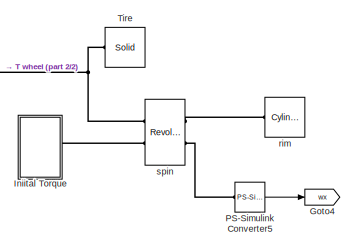
[diagram: root canvas - part 1/2, top right region]
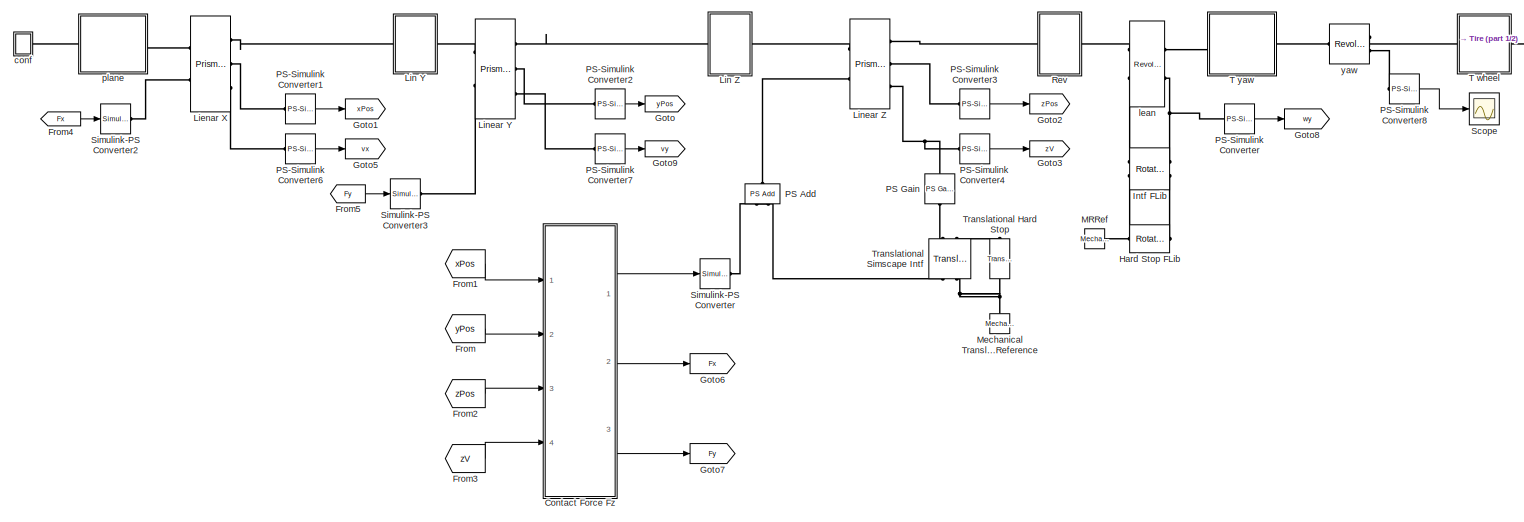
[diagram: root canvas - part 2/2, most of the canvas]
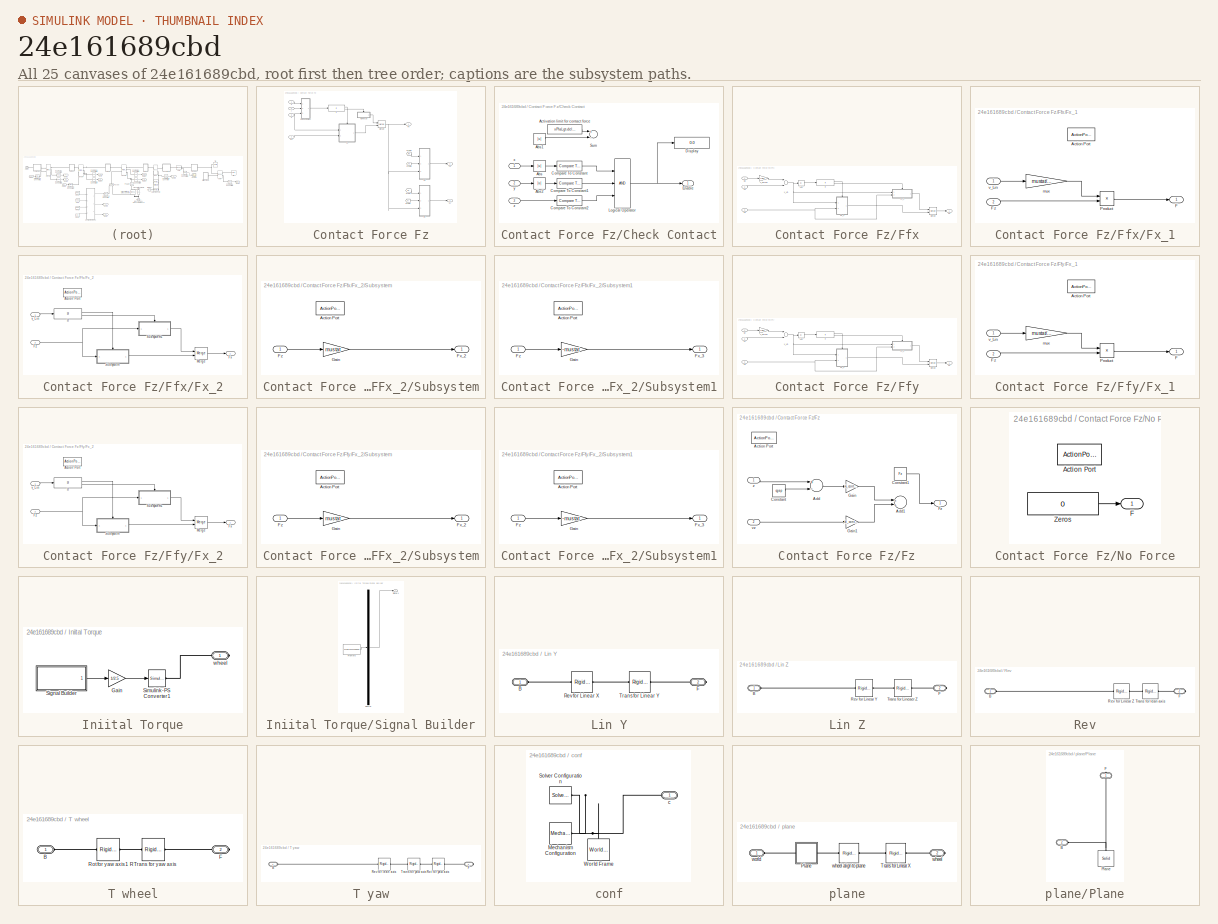
[diagram: thumbnail index - all 25 canvases of the model, root first then tree order]
MODEL slx_24e161689cbd
KIND model
CONFIG AbsTol = auto
CONFIG EnableMultiTasking = off
CONFIG FixedStep = auto
CONFIG MaxStep = auto
CONFIG MinStep = auto
CONFIG RelTol = 1e-3
CONFIG SampleTimeConstraint = Unconstrained
CONFIG Solver = VariableStepAuto
CONFIG SolverName = VariableStepAuto
CONFIG StartTime = 0.0
CONFIG StopTime = 6
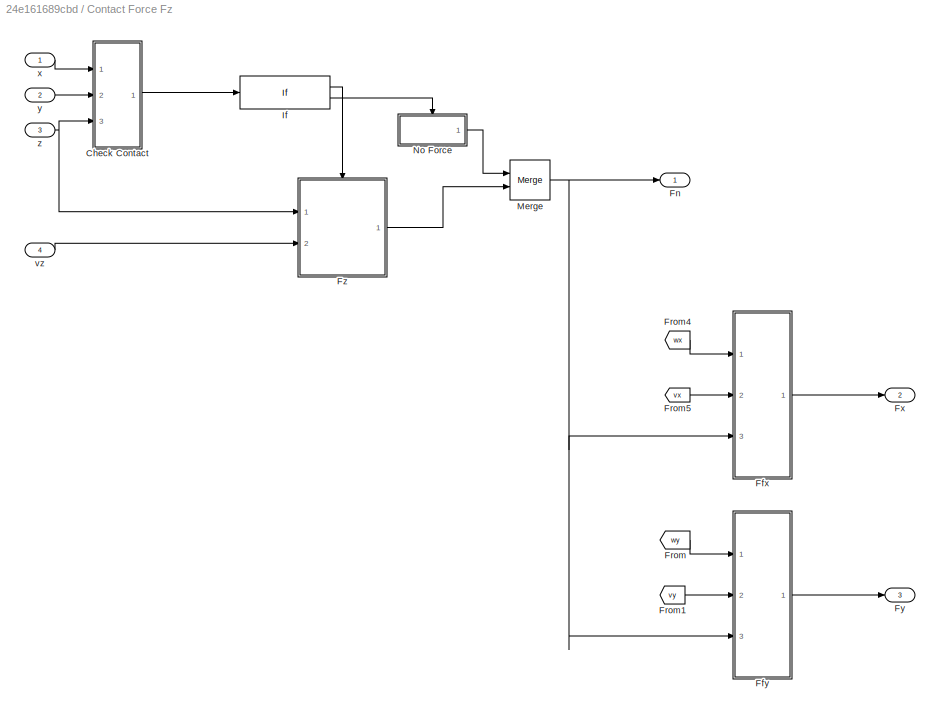
BLOCK [SubSystem] Contact Force Fz
  Ports = [4, 3]
  RequestExecContextInheritance = off
  Variant = off
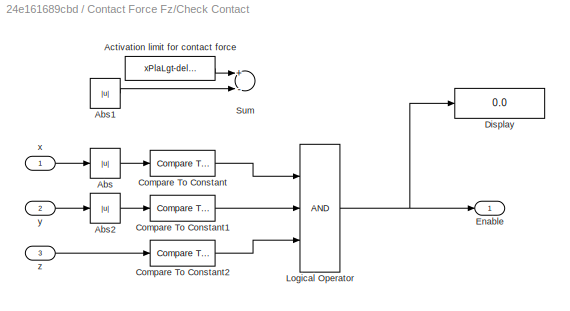
BLOCK [SubSystem] Contact Force Fz/Check Contact
  Ports = [3, 1]
  RequestExecContextInheritance = off
  Variant = off
BLOCK [Abs] Contact Force Fz/Check Contact/Abs
  SaturateOnIntegerOverflow = off
BLOCK [Abs] Contact Force Fz/Check Contact/Abs1
  Commented = on
  SaturateOnIntegerOverflow = off
  ZeroCross = off
BLOCK [Abs] Contact Force Fz/Check Contact/Abs2
  SaturateOnIntegerOverflow = off
BLOCK [Constant] Contact Force Fz/Check Contact/Activation limit for contact force
  Commented = on
  Value = xPlaLgt-delta
BLOCK [Reference] Contact Force Fz/Check Contact/Compare To Constant  REF=simulink/Logic and Bit
Operations/Compare
To Constant
  Ports = [1, 1]
  SourceBlock = simulink/Logic and Bit\nOperations/Compare\nTo Constant
  SourceProductBaseCode = SL
  SourceProductName = Simulink
  SourceType = Compare To Constant
BLOCK [Reference] Contact Force Fz/Check Contact/Compare To Constant1  REF=simulink/Logic and Bit
Operations/Compare
To Constant
  Ports = [1, 1]
  SourceBlock = simulink/Logic and Bit\nOperations/Compare\nTo Constant
  SourceProductBaseCode = SL
  SourceProductName = Simulink
  SourceType = Compare To Constant
BLOCK [Reference] Contact Force Fz/Check Contact/Compare To Constant2  REF=simulink/Logic and Bit
Operations/Compare
To Constant
  Ports = [1, 1]
  SourceBlock = simulink/Logic and Bit\nOperations/Compare\nTo Constant
  SourceProductBaseCode = SL
  SourceProductName = Simulink
  SourceType = Compare To Constant
BLOCK [Display] Contact Force Fz/Check Contact/Display
  Decimation = 1
  Ports = [1]
BLOCK [Outport] Contact Force Fz/Check Contact/Enable
  IconDisplay = Port number
BLOCK [Logic] Contact Force Fz/Check Contact/Logical Operator
  AllPortsSameDT = off
  Inputs = 3
  OutDataTypeStr = boolean
  Ports = [3, 1]
BLOCK [Sum] Contact Force Fz/Check Contact/Sum
  Commented = on
  InputSameDT = off
  Inputs = +-
  OutDataTypeStr = Inherit: Inherit via internal rule
  Ports = [2, 1]
  SaturateOnIntegerOverflow = off
BLOCK [Inport] Contact Force Fz/Check Contact/x
  IconDisplay = Port number
BLOCK [Inport] Contact Force Fz/Check Contact/y
  IconDisplay = Port number
  Port = 2
BLOCK [Inport] Contact Force Fz/Check Contact/z
  IconDisplay = Port number
  Port = 3
BLOCK [SubSystem] Contact Force Fz/Ffx
  Ports = [3, 1]
  RequestExecContextInheritance = off
  Variant = off
BLOCK [Abs] Contact Force Fz/Ffx/Abs
  SaturateOnIntegerOverflow = off
BLOCK [Outport] Contact Force Fz/Ffx/Fx
  IconDisplay = Port number
BLOCK [SubSystem] Contact Force Fz/Ffx/Fx_1
  AncestorBlock = Contact_Forces_Lib/2D/Circle to Finite Line Force/No Force
  Ports = [2, 1, 0, 0, 0, 0, 0, 1]
  RequestExecContextInheritance = off
  Variant = off
BLOCK [ActionPort] Contact Force Fz/Ffx/Fx_1/Action Port
  ActionType = then
BLOCK [Outport] Contact Force Fz/Ffx/Fx_1/F
  IconDisplay = Port number
  InitialOutput = 0
BLOCK [Inport] Contact Force Fz/Ffx/Fx_1/Fz
  IconDisplay = Port number
  Port = 2
BLOCK [Product] Contact Force Fz/Ffx/Fx_1/Product
  InputSameDT = off
  OutDataTypeStr = Inherit: Inherit via internal rule
  Ports = [2, 1]
  RndMeth = Floor
  SaturateOnIntegerOverflow = off
BLOCK [Gain] Contact Force Fz/Ffx/Fx_1/mux
  Gain = mustat/vthr
  OutDataTypeStr = Inherit: Inherit via internal rule
  ParamDataTypeStr = Inherit: Inherit via internal rule
  SaturateOnIntegerOverflow = off
BLOCK [Inport] Contact Force Fz/Ffx/Fx_1/v_Lin
  IconDisplay = Port number
BLOCK [SubSystem] Contact Force Fz/Ffx/Fx_2
  Ports = [2, 1, 0, 0, 0, 0, 0, 1]
  RequestExecContextInheritance = off
  Variant = off
BLOCK [ActionPort] Contact Force Fz/Ffx/Fx_2/Action Port
  ActionType = else
BLOCK [Outport] Contact Force Fz/Ffx/Fx_2/Fx
  IconDisplay = Port number
BLOCK [Inport] Contact Force Fz/Ffx/Fx_2/Fz
  IconDisplay = Port number
  Port = 2
BLOCK [If] Contact Force Fz/Ffx/Fx_2/If
  IfExpression = (u1 > vthr)
  Ports = [1, 2]
BLOCK [Merge] Contact Force Fz/Ffx/Fx_2/Merge
  Ports = [2, 1]
BLOCK [SubSystem] Contact Force Fz/Ffx/Fx_2/Subsystem
  Ports = [1, 1, 0, 0, 0, 0, 0, 1]
  RequestExecContextInheritance = off
  Variant = off
BLOCK [ActionPort] Contact Force Fz/Ffx/Fx_2/Subsystem/Action Port
  ActionType = then
BLOCK [Outport] Contact Force Fz/Ffx/Fx_2/Subsystem/Fx_2
  IconDisplay = Port number
BLOCK [Inport] Contact Force Fz/Ffx/Fx_2/Subsystem/Fz
  IconDisplay = Port number
BLOCK [Gain] Contact Force Fz/Ffx/Fx_2/Subsystem/Gain
  Gain = mustat
  OutDataTypeStr = Inherit: Inherit via internal rule
  ParamDataTypeStr = Inherit: Inherit via internal rule
  SaturateOnIntegerOverflow = off
BLOCK [SubSystem] Contact Force Fz/Ffx/Fx_2/Subsystem1
  Ports = [1, 1, 0, 0, 0, 0, 0, 1]
  RequestExecContextInheritance = off
  Variant = off
BLOCK [ActionPort] Contact Force Fz/Ffx/Fx_2/Subsystem1/Action Port
  ActionType = else
BLOCK [Outport] Contact Force Fz/Ffx/Fx_2/Subsystem1/Fx_3
  IconDisplay = Port number
BLOCK [Inport] Contact Force Fz/Ffx/Fx_2/Subsystem1/Fz
  IconDisplay = Port number
BLOCK [Gain] Contact Force Fz/Ffx/Fx_2/Subsystem1/Gain
  Gain = -mustat
  OutDataTypeStr = Inherit: Inherit via internal rule
  ParamDataTypeStr = Inherit: Inherit via internal rule
  SaturateOnIntegerOverflow = off
BLOCK [Inport] Contact Force Fz/Ffx/Fx_2/v_Lin
  IconDisplay = Port number
BLOCK [Inport] Contact Force Fz/Ffx/Fz
  IconDisplay = Port number
  Port = 3
BLOCK [If] Contact Force Fz/Ffx/If
  IfExpression = (u1 <= vthr)
  Ports = [1, 2]
BLOCK [Merge] Contact Force Fz/Ffx/Merge
  Ports = [2, 1]
BLOCK [Gain] Contact Force Fz/Ffx/V_Circum
  Gain = rTire
  OutDataTypeStr = Inherit: Inherit via internal rule
  ParamDataTypeStr = Inherit: Inherit via internal rule
  SaturateOnIntegerOverflow = off
BLOCK [Sum] Contact Force Fz/Ffx/v_Lin
  InputSameDT = off
  Inputs = --
  OutDataTypeStr = Inherit: Inherit via internal rule
  Ports = [2, 1]
  SaturateOnIntegerOverflow = off
BLOCK [Inport] Contact Force Fz/Ffx/vx
  IconDisplay = Port number
  Port = 2
BLOCK [Inport] Contact Force Fz/Ffx/wx
  IconDisplay = Port number
BLOCK [SubSystem] Contact Force Fz/Ffy
  Ports = [3, 1]
  RequestExecContextInheritance = off
  Variant = off
BLOCK [Abs] Contact Force Fz/Ffy/Abs
  SaturateOnIntegerOverflow = off
BLOCK [Outport] Contact Force Fz/Ffy/Fx
  IconDisplay = Port number
BLOCK [SubSystem] Contact Force Fz/Ffy/Fx_1
  AncestorBlock = Contact_Forces_Lib/2D/Circle to Finite Line Force/No Force
  Ports = [2, 1, 0, 0, 0, 0, 0, 1]
  RequestExecContextInheritance = off
  Variant = off
BLOCK [ActionPort] Contact Force Fz/Ffy/Fx_1/Action Port
  ActionType = then
BLOCK [Outport] Contact Force Fz/Ffy/Fx_1/F
  IconDisplay = Port number
  InitialOutput = 0
BLOCK [Inport] Contact Force Fz/Ffy/Fx_1/Fz
  IconDisplay = Port number
  Port = 2
BLOCK [Product] Contact Force Fz/Ffy/Fx_1/Product
  InputSameDT = off
  OutDataTypeStr = Inherit: Inherit via internal rule
  Ports = [2, 1]
  RndMeth = Floor
  SaturateOnIntegerOverflow = off
BLOCK [Gain] Contact Force Fz/Ffy/Fx_1/mux
  Gain = mustat/vthr
  OutDataTypeStr = Inherit: Inherit via internal rule
  ParamDataTypeStr = Inherit: Inherit via internal rule
  SaturateOnIntegerOverflow = off
BLOCK [Inport] Contact Force Fz/Ffy/Fx_1/v_Lin
  IconDisplay = Port number
BLOCK [SubSystem] Contact Force Fz/Ffy/Fx_2
  Ports = [2, 1, 0, 0, 0, 0, 0, 1]
  RequestExecContextInheritance = off
  Variant = off
BLOCK [ActionPort] Contact Force Fz/Ffy/Fx_2/Action Port
  ActionType = else
BLOCK [Outport] Contact Force Fz/Ffy/Fx_2/Fx
  IconDisplay = Port number
BLOCK [Inport] Contact Force Fz/Ffy/Fx_2/Fz
  IconDisplay = Port number
  Port = 2
BLOCK [If] Contact Force Fz/Ffy/Fx_2/If
  IfExpression = (u1 > vthr)
  Ports = [1, 2]
BLOCK [Merge] Contact Force Fz/Ffy/Fx_2/Merge
  Ports = [2, 1]
BLOCK [SubSystem] Contact Force Fz/Ffy/Fx_2/Subsystem
  Ports = [1, 1, 0, 0, 0, 0, 0, 1]
  RequestExecContextInheritance = off
  Variant = off
BLOCK [ActionPort] Contact Force Fz/Ffy/Fx_2/Subsystem/Action Port
  ActionType = then
BLOCK [Outport] Contact Force Fz/Ffy/Fx_2/Subsystem/Fx_2
  IconDisplay = Port number
BLOCK [Inport] Contact Force Fz/Ffy/Fx_2/Subsystem/Fz
  IconDisplay = Port number
BLOCK [Gain] Contact Force Fz/Ffy/Fx_2/Subsystem/Gain
  Gain = mustat
  OutDataTypeStr = Inherit: Inherit via internal rule
  ParamDataTypeStr = Inherit: Inherit via internal rule
  SaturateOnIntegerOverflow = off
BLOCK [SubSystem] Contact Force Fz/Ffy/Fx_2/Subsystem1
  Ports = [1, 1, 0, 0, 0, 0, 0, 1]
  RequestExecContextInheritance = off
  Variant = off
BLOCK [ActionPort] Contact Force Fz/Ffy/Fx_2/Subsystem1/Action Port
  ActionType = else
BLOCK [Outport] Contact Force Fz/Ffy/Fx_2/Subsystem1/Fx_3
  IconDisplay = Port number
BLOCK [Inport] Contact Force Fz/Ffy/Fx_2/Subsystem1/Fz
  IconDisplay = Port number
BLOCK [Gain] Contact Force Fz/Ffy/Fx_2/Subsystem1/Gain
  Gain = -mustat
  OutDataTypeStr = Inherit: Inherit via internal rule
  ParamDataTypeStr = Inherit: Inherit via internal rule
  SaturateOnIntegerOverflow = off
BLOCK [Inport] Contact Force Fz/Ffy/Fx_2/v_Lin
  IconDisplay = Port number
BLOCK [Inport] Contact Force Fz/Ffy/Fz
  IconDisplay = Port number
  Port = 3
BLOCK [If] Contact Force Fz/Ffy/If
  IfExpression = (u1 <= vthr)
  Ports = [1, 2]
BLOCK [Merge] Contact Force Fz/Ffy/Merge
  Ports = [2, 1]
BLOCK [Gain] Contact Force Fz/Ffy/V_Circum
  Gain = rTire
  OutDataTypeStr = Inherit: Inherit via internal rule
  ParamDataTypeStr = Inherit: Inherit via internal rule
  SaturateOnIntegerOverflow = off
BLOCK [Sum] Contact Force Fz/Ffy/v_Lin
  InputSameDT = off
  Inputs = --
  OutDataTypeStr = Inherit: Inherit via internal rule
  Ports = [2, 1]
  SaturateOnIntegerOverflow = off
BLOCK [Inport] Contact Force Fz/Ffy/vy
  IconDisplay = Port number
  Port = 2
BLOCK [Inport] Contact Force Fz/Ffy/wy
  IconDisplay = Port number
BLOCK [Outport] Contact Force Fz/Fn
  IconDisplay = Port number
BLOCK [From] Contact Force Fz/From
  GotoTag = wy
  TagVisibility = global
BLOCK [From] Contact Force Fz/From1
  GotoTag = vy
  TagVisibility = global
BLOCK [From] Contact Force Fz/From4
  GotoTag = wx
  TagVisibility = global
BLOCK [From] Contact Force Fz/From5
  GotoTag = vx
  TagVisibility = global
BLOCK [Outport] Contact Force Fz/Fx
  IconDisplay = Port number
  Port = 2
BLOCK [Outport] Contact Force Fz/Fy
  IconDisplay = Port number
  Port = 3
BLOCK [SubSystem] Contact Force Fz/Fz
  Ports = [2, 1, 0, 0, 0, 0, 0, 1]
  RequestExecContextInheritance = off
  Variant = off
BLOCK [ActionPort] Contact Force Fz/Fz/Action Port
  ActionType = then
BLOCK [Sum] Contact Force Fz/Fz/Add
  Commented = on
  InputSameDT = off
  Inputs = +-
  OutDataTypeStr = Inherit: Inherit via internal rule
  Ports = [2, 1]
  SaturateOnIntegerOverflow = off
BLOCK [Sum] Contact Force Fz/Fz/Add1
  Commented = on
  InputSameDT = off
  OutDataTypeStr = Inherit: Inherit via internal rule
  Ports = [2, 1]
  SaturateOnIntegerOverflow = off
BLOCK [Constant] Contact Force Fz/Fz/Constant
  Commented = on
  Value = cgap
BLOCK [Constant] Contact Force Fz/Fz/Constant1
  Value = Fz
BLOCK [Outport] Contact Force Fz/Fz/Fz
  IconDisplay = Port number
BLOCK [Gain] Contact Force Fz/Fz/Gain
  Commented = on
  Gain = -k_contact
  OutDataTypeStr = Inherit: Inherit via internal rule
  ParamDataTypeStr = Inherit: Inherit via internal rule
  SaturateOnIntegerOverflow = off
BLOCK [Gain] Contact Force Fz/Fz/Gain1
  Commented = on
  Gain = -b_contact
  OutDataTypeStr = Inherit: Inherit via internal rule
  ParamDataTypeStr = Inherit: Inherit via internal rule
  SaturateOnIntegerOverflow = off
BLOCK [Inport] Contact Force Fz/Fz/vz
  IconDisplay = Port number
  Port = 2
BLOCK [Inport] Contact Force Fz/Fz/z
  IconDisplay = Port number
BLOCK [If] Contact Force Fz/If
  IfExpression = (u1 == 1)
  Ports = [1, 2]
BLOCK [Merge] Contact Force Fz/Merge
  InitialOutput = 0
  InputPortOffsets = 0
  Ports = [2, 1]
BLOCK [SubSystem] Contact Force Fz/No Force
  AncestorBlock = Contact_Forces_Lib/2D/Circle to Finite Line Force/No Force
  Ports = [0, 1, 0, 0, 0, 0, 0, 1]
  RequestExecContextInheritance = off
  Variant = off
BLOCK [ActionPort] Contact Force Fz/No Force/Action Port
  ActionType = else
BLOCK [Outport] Contact Force Fz/No Force/F
  IconDisplay = Port number
  InitialOutput = 0
BLOCK [Constant] Contact Force Fz/No Force/Zeros
  SampleTime = 0
  Value = 0
BLOCK [Inport] Contact Force Fz/vz
  IconDisplay = Port number
  Port = 4
BLOCK [Inport] Contact Force Fz/x
  IconDisplay = Port number
BLOCK [Inport] Contact Force Fz/y
  IconDisplay = Port number
  Port = 2
BLOCK [Inport] Contact Force Fz/z
  IconDisplay = Port number
  Port = 3
BLOCK [From] From
  GotoTag = yPos
BLOCK [From] From1
  GotoTag = xPos
BLOCK [From] From2
  GotoTag = zPos
BLOCK [From] From3
  GotoTag = zV
BLOCK [From] From4
  GotoTag = Fx
BLOCK [From] From5
  GotoTag = Fy
BLOCK [Goto] Goto
  GotoTag = yPos
BLOCK [Goto] Goto1
  GotoTag = xPos
BLOCK [Goto] Goto2
  GotoTag = zPos
BLOCK [Goto] Goto3
  GotoTag = zV
BLOCK [Goto] Goto4
  GotoTag = wx
  TagVisibility = global
BLOCK [Goto] Goto5
  GotoTag = vx
  TagVisibility = global
BLOCK [Goto] Goto6
  GotoTag = Fx
BLOCK [Goto] Goto7
  GotoTag = Fy
BLOCK [Goto] Goto8
  GotoTag = wy
  TagVisibility = global
BLOCK [Goto] Goto9
  GotoTag = vy
  TagVisibility = global
BLOCK [Reference] Hard Stop FLib  REF=fl_lib/Mechanical/Rotational Elements/Rotational Hard Stop
  Ports = [0, 0, 0, 0, 0, 1, 1]
  SourceBlock = fl_lib/Mechanical/Rotational Elements/Rotational Hard Stop
  SourceProductBaseCode = SS
  SourceProductName = Simscape
  SourceType = Rotational Hard Stop
BLOCK [SubSystem] Iniital Torque
  Ports = [0, 0, 0, 0, 0, 0, 1]
  RequestExecContextInheritance = off
  Variant = off
BLOCK [Gain] Iniital Torque/Gain
  Gain = 1/2.5
  OutDataTypeStr = Inherit: Inherit via internal rule
  ParamDataTypeStr = Inherit: Inherit via internal rule
  SaturateOnIntegerOverflow = off
BLOCK [SubSystem] Iniital Torque/Signal Builder
  ClipboardFcn = sigbuilder_block('clipboard');
  CloseFcn = sigbuilder_block('close');
  ContinueFcn = sigbuilder_block('continue');
  CopyFcn = sigbuilder_block('copy');
  DeleteFcn = sigbuilder_block('delete');
  LoadFcn = sigbuilder_block('load');
  MaskHideContents = on
  ModelCloseFcn = sigbuilder_block('modelClose');
  NameChangeFcn = sigbuilder_block('namechange');
  OpenFcn = sigbuilder_block('open',[48.75 0 975.75 495.75 ]);
  PauseFcn = sigbuilder_block('pause');
  Ports = [0, 1]
  PreSaveFcn = sigbuilder_block('preSave');
  RequestExecContextInheritance = off
  StartFcn = sigbuilder_block('start');
  StopFcn = sigbuilder_block('stop');
  Tag = STV Subsys
  Variant = off
BLOCK [Demux] Iniital Torque/Signal Builder/Demux
  Outputs = 1
  Ports = [1, 1]
  Tag = STV Demux
BLOCK [FromWorkspace] Iniital Torque/Signal Builder/FromWs
  SampleTime = 0
  Tag = STV FromWs
  VariableName = tuvar
  ZeroCross = on
BLOCK [Outport] Iniital Torque/Signal Builder/Signal 1
  IconDisplay = Port number
  Tag = STV Outport
BLOCK [Reference] Iniital Torque/Simulink-PS Converter1  REF=nesl_utility/Simulink-PS
Converter
  Ports = [1, 0, 0, 0, 0, 0, 1]
  SourceBlock = nesl_utility/Simulink-PS\nConverter
  SourceProductBaseCode = SS
  SourceProductName = Simscape
  SourceType = Simulink-PS\nConverter
BLOCK [PMIOPort] Iniital Torque/wheel
  Port = 1
  Side = Right
BLOCK [Reference] Intf FLib  REF=Multibody_Multiphysics_Lib/Interfaces/Rotational
Simscape Intf
  Ports = [0, 0, 0, 0, 0, 2, 2]
  SourceBlock = Multibody_Multiphysics_Lib/Interfaces/Rotational\nSimscape Intf
  SourceProductName = Simscape Multibody Multiphysics Library
  SourceType = SubSystem
  Tag = PublishSubsystem
BLOCK [Reference] Lienar X  REF=sm_lib/Joints/Prismatic
Joint
  Ports = [0, 0, 0, 0, 0, 2, 3]
  SourceBlock = sm_lib/Joints/Prismatic\nJoint
  SourceProductBaseCode = MS
  SourceProductName = Simscape Multibody
  SourceType = Prismatic\nJoint
BLOCK [SubSystem] Lin Y
  Ports = [0, 0, 0, 0, 0, 1, 1]
  RequestExecContextInheritance = off
  Variant = off
BLOCK [PMIOPort] Lin Y/B
  Port = 1
  Side = Left
BLOCK [PMIOPort] Lin Y/F
  Port = 2
  Side = Right
BLOCK [Reference] Lin Y/Rev for Linear X  REF=sm_lib/Frames and
Transforms/Rigid
Transform
  Ports = [0, 0, 0, 0, 0, 1, 1]
  SourceBlock = sm_lib/Frames and\nTransforms/Rigid\nTransform
  SourceProductBaseCode = MS
  SourceProductName = Simscape Multibody
  SourceType = Rigid\nTransform
BLOCK [Reference] Lin Y/Trans for Linear Y  REF=sm_lib/Frames and
Transforms/Rigid
Transform
  Ports = [0, 0, 0, 0, 0, 1, 1]
  SourceBlock = sm_lib/Frames and\nTransforms/Rigid\nTransform
  SourceProductBaseCode = MS
  SourceProductName = Simscape Multibody
  SourceType = Rigid\nTransform
BLOCK [SubSystem] Lin Z
  Ports = [0, 0, 0, 0, 0, 1, 1]
  RequestExecContextInheritance = off
  Variant = off
BLOCK [PMIOPort] Lin Z/B
  Port = 1
  Side = Left
BLOCK [PMIOPort] Lin Z/F
  Port = 2
  Side = Right
BLOCK [Reference] Lin Z/Rev for Linear Y  REF=sm_lib/Frames and
Transforms/Rigid
Transform
  Ports = [0, 0, 0, 0, 0, 1, 1]
  SourceBlock = sm_lib/Frames and\nTransforms/Rigid\nTransform
  SourceProductBaseCode = MS
  SourceProductName = Simscape Multibody
  SourceType = Rigid\nTransform
BLOCK [Reference] Lin Z/Trans for Lineaer Z  REF=sm_lib/Frames and
Transforms/Rigid
Transform
  Ports = [0, 0, 0, 0, 0, 1, 1]
  SourceBlock = sm_lib/Frames and\nTransforms/Rigid\nTransform
  SourceProductBaseCode = MS
  SourceProductName = Simscape Multibody
  SourceType = Rigid\nTransform
BLOCK [Reference] Linear Y  REF=sm_lib/Joints/Prismatic
Joint
  Ports = [0, 0, 0, 0, 0, 2, 3]
  SourceBlock = sm_lib/Joints/Prismatic\nJoint
  SourceProductBaseCode = MS
  SourceProductName = Simscape Multibody
  SourceType = Prismatic\nJoint
BLOCK [Reference] Linear Z  REF=sm_lib/Joints/Prismatic
Joint
  Ports = [0, 0, 0, 0, 0, 2, 3]
  SourceBlock = sm_lib/Joints/Prismatic\nJoint
  SourceProductBaseCode = MS
  SourceProductName = Simscape Multibody
  SourceType = Prismatic\nJoint
BLOCK [Reference] MRRef  REF=fl_lib/Mechanical/Rotational Elements/Mechanical
Rotational Reference
  Ports = [0, 0, 0, 0, 0, 1]
  SourceBlock = fl_lib/Mechanical/Rotational Elements/Mechanical\nRotational Reference
  SourceProductBaseCode = SS
  SourceProductName = Simscape
  SourceType = Mechanical\nRotational Reference
BLOCK [Reference] Mechanical Translational Reference  REF=fl_lib/Mechanical/Translational
Elements/Mechanical
Translational
Reference
  Ports = [0, 0, 0, 0, 0, 1]
  SourceBlock = fl_lib/Mechanical/Translational\nElements/Mechanical\nTranslational\nReference
  SourceProductBaseCode = SS
  SourceProductName = Simscape
  SourceType = Mechanical\nTranslational\nReference
BLOCK [Reference] PS Add  REF=fl_lib/Physical Signals/Functions/PS Add
  Ports = [0, 0, 0, 0, 0, 2, 1]
  SourceBlock = fl_lib/Physical Signals/Functions/PS Add
  SourceProductBaseCode = SS
  SourceProductName = Simscape
  SourceType = PS Add
BLOCK [Reference] PS Gain  REF=fl_lib/Physical Signals/Functions/PS Gain
  Ports = [0, 0, 0, 0, 0, 1, 1]
  SourceBlock = fl_lib/Physical Signals/Functions/PS Gain
  SourceProductBaseCode = SS
  SourceProductName = Simscape
  SourceType = PS Gain
BLOCK [Reference] PS-Simulink Converter  REF=nesl_utility/PS-Simulink
Converter
  Ports = [0, 1, 0, 0, 0, 1]
  SourceBlock = nesl_utility/PS-Simulink\nConverter
  SourceProductBaseCode = SS
  SourceProductName = Simscape
  SourceType = PS-Simulink\nConverter
BLOCK [Reference] PS-Simulink Converter1  REF=nesl_utility/PS-Simulink
Converter
  Ports = [0, 1, 0, 0, 0, 1]
  SourceBlock = nesl_utility/PS-Simulink\nConverter
  SourceProductBaseCode = SS
  SourceProductName = Simscape
  SourceType = PS-Simulink\nConverter
BLOCK [Reference] PS-Simulink Converter2  REF=nesl_utility/PS-Simulink
Converter
  Ports = [0, 1, 0, 0, 0, 1]
  SourceBlock = nesl_utility/PS-Simulink\nConverter
  SourceProductBaseCode = SS
  SourceProductName = Simscape
  SourceType = PS-Simulink\nConverter
BLOCK [Reference] PS-Simulink Converter3  REF=nesl_utility/PS-Simulink
Converter
  Ports = [0, 1, 0, 0, 0, 1]
  SourceBlock = nesl_utility/PS-Simulink\nConverter
  SourceProductBaseCode = SS
  SourceProductName = Simscape
  SourceType = PS-Simulink\nConverter
BLOCK [Reference] PS-Simulink Converter4  REF=nesl_utility/PS-Simulink
Converter
  Ports = [0, 1, 0, 0, 0, 1]
  SourceBlock = nesl_utility/PS-Simulink\nConverter
  SourceProductBaseCode = SS
  SourceProductName = Simscape
  SourceType = PS-Simulink\nConverter
BLOCK [Reference] PS-Simulink Converter5  REF=nesl_utility/PS-Simulink
Converter
  Ports = [0, 1, 0, 0, 0, 1]
  SourceBlock = nesl_utility/PS-Simulink\nConverter
  SourceProductBaseCode = SS
  SourceProductName = Simscape
  SourceType = PS-Simulink\nConverter
BLOCK [Reference] PS-Simulink Converter6  REF=nesl_utility/PS-Simulink
Converter
  Ports = [0, 1, 0, 0, 0, 1]
  SourceBlock = nesl_utility/PS-Simulink\nConverter
  SourceProductBaseCode = SS
  SourceProductName = Simscape
  SourceType = PS-Simulink\nConverter
BLOCK [Reference] PS-Simulink Converter7  REF=nesl_utility/PS-Simulink
Converter
  Ports = [0, 1, 0, 0, 0, 1]
  SourceBlock = nesl_utility/PS-Simulink\nConverter
  SourceProductBaseCode = SS
  SourceProductName = Simscape
  SourceType = PS-Simulink\nConverter
BLOCK [Reference] PS-Simulink Converter8  REF=nesl_utility/PS-Simulink
Converter
  Ports = [0, 1, 0, 0, 0, 1]
  SourceBlock = nesl_utility/PS-Simulink\nConverter
  SourceProductBaseCode = SS
  SourceProductName = Simscape
  SourceType = PS-Simulink\nConverter
BLOCK [SubSystem] Rev
  Ports = [0, 0, 0, 0, 0, 1, 1]
  RequestExecContextInheritance = off
  Variant = off
BLOCK [PMIOPort] Rev/B
  Port = 1
  Side = Left
BLOCK [PMIOPort] Rev/F
  Port = 2
  Side = Right
BLOCK [Reference] Rev/Rev for Linear Z  REF=sm_lib/Frames and
Transforms/Rigid
Transform
  Ports = [0, 0, 0, 0, 0, 1, 1]
  SourceBlock = sm_lib/Frames and\nTransforms/Rigid\nTransform
  SourceProductBaseCode = MS
  SourceProductName = Simscape Multibody
  SourceType = Rigid\nTransform
BLOCK [Reference] Rev/Trans for lean axis  REF=sm_lib/Frames and
Transforms/Rigid
Transform
  Ports = [0, 0, 0, 0, 0, 1, 1]
  SourceBlock = sm_lib/Frames and\nTransforms/Rigid\nTransform
  SourceProductBaseCode = MS
  SourceProductName = Simscape Multibody
  SourceType = Rigid\nTransform
BLOCK [Scope] Scope
  NumInputPorts = 1
  Ports = [1]
  ScopeSpecificationString = Simulink.scopes.TimeScopeBlockCfg('CurrentConfiguration', extmgr.ConfigurationSet(extmgr.Configuration('Core','General UI',true),extmgr.Configuration('Core','Source UI',true),extmgr.Configuration('Sources','WiredSimulink',true),extmgr.Configuration('Visuals','Time Domain',true,'SerializedDisplays',{struct('MinYLimReal','-58.07613','MaxYLimReal','58.94316','YLabelReal','','MinYLimMag','0.00000','Ma...<+1377ch>
BLOCK [Reference] Simulink-PS Converter  REF=nesl_utility/Simulink-PS
Converter
  Ports = [1, 0, 0, 0, 0, 0, 1]
  SourceBlock = nesl_utility/Simulink-PS\nConverter
  SourceProductBaseCode = SS
  SourceProductName = Simscape
  SourceType = Simulink-PS\nConverter
BLOCK [Reference] Simulink-PS Converter2  REF=nesl_utility/Simulink-PS
Converter
  Ports = [1, 0, 0, 0, 0, 0, 1]
  SourceBlock = nesl_utility/Simulink-PS\nConverter
  SourceProductBaseCode = SS
  SourceProductName = Simscape
  SourceType = Simulink-PS\nConverter
BLOCK [Reference] Simulink-PS Converter3  REF=nesl_utility/Simulink-PS
Converter
  Ports = [1, 0, 0, 0, 0, 0, 1]
  SourceBlock = nesl_utility/Simulink-PS\nConverter
  SourceProductBaseCode = SS
  SourceProductName = Simscape
  SourceType = Simulink-PS\nConverter
BLOCK [SubSystem] T wheel
  Ports = [0, 0, 0, 0, 0, 1, 1]
  RequestExecContextInheritance = off
  Variant = off
BLOCK [PMIOPort] T wheel/B
  Port = 1
  Side = Left
BLOCK [PMIOPort] T wheel/F
  Port = 2
  Side = Right
BLOCK [Reference] T wheel/RTrans for yaw axis  REF=sm_lib/Frames and
Transforms/Rigid
Transform
  Ports = [0, 0, 0, 0, 0, 1, 1]
  SourceBlock = sm_lib/Frames and\nTransforms/Rigid\nTransform
  SourceProductBaseCode = MS
  SourceProductName = Simscape Multibody
  SourceType = Rigid\nTransform
BLOCK [Reference] T wheel/Rot for yaw axis1  REF=sm_lib/Frames and
Transforms/Rigid
Transform
  Ports = [0, 0, 0, 0, 0, 1, 1]
  SourceBlock = sm_lib/Frames and\nTransforms/Rigid\nTransform
  SourceProductBaseCode = MS
  SourceProductName = Simscape Multibody
  SourceType = Rigid\nTransform
BLOCK [SubSystem] T yaw
  Ports = [0, 0, 0, 0, 0, 1, 1]
  RequestExecContextInheritance = off
  Variant = off
BLOCK [PMIOPort] T yaw/B
  Port = 1
  Side = Left
BLOCK [PMIOPort] T yaw/F
  Port = 2
  Side = Right
BLOCK [Reference] T yaw/Rev for lean axis  REF=sm_lib/Frames and
Transforms/Rigid
Transform
  Ports = [0, 0, 0, 0, 0, 1, 1]
  SourceBlock = sm_lib/Frames and\nTransforms/Rigid\nTransform
  SourceProductBaseCode = MS
  SourceProductName = Simscape Multibody
  SourceType = Rigid\nTransform
BLOCK [Reference] T yaw/Rot for yaw axis  REF=sm_lib/Frames and
Transforms/Rigid
Transform
  Ports = [0, 0, 0, 0, 0, 1, 1]
  SourceBlock = sm_lib/Frames and\nTransforms/Rigid\nTransform
  SourceProductBaseCode = MS
  SourceProductName = Simscape Multibody
  SourceType = Rigid\nTransform
BLOCK [Reference] T yaw/Trans for yaw axis  REF=sm_lib/Frames and
Transforms/Rigid
Transform
  Ports = [0, 0, 0, 0, 0, 1, 1]
  SourceBlock = sm_lib/Frames and\nTransforms/Rigid\nTransform
  SourceProductBaseCode = MS
  SourceProductName = Simscape Multibody
  SourceType = Rigid\nTransform
BLOCK [Reference] Tire  REF=sm_lib/Body Elements/Solid
  Ports = [0, 0, 0, 0, 0, 0, 1]
  SourceBlock = sm_lib/Body Elements/Solid
  SourceProductBaseCode = MS
  SourceProductName = Simscape Multibody
  SourceType = Solid
BLOCK [Reference] Translational Hard Stop  REF=fl_lib/Mechanical/Translational
Elements/Translational Hard
Stop
  Ports = [0, 0, 0, 0, 0, 1, 1]
  SourceBlock = fl_lib/Mechanical/Translational\nElements/Translational Hard\nStop
  SourceProductBaseCode = SS
  SourceProductName = Simscape
  SourceType = Translational Hard\nStop
BLOCK [Reference] Translational Simscape Intf  REF=Multibody_Multiphysics_Lib/Interfaces/Translational
Simscape Intf
  Ports = [0, 0, 0, 0, 0, 2, 2]
  SourceBlock = Multibody_Multiphysics_Lib/Interfaces/Translational\nSimscape Intf
  SourceType = SubSystem
BLOCK [SubSystem] conf
  Ports = [0, 0, 0, 0, 0, 0, 1]
  RequestExecContextInheritance = off
  Variant = off
BLOCK [Reference] conf/Mechanism Configuration  REF=sm_lib/Utilities/Mechanism
Configuration
  Ports = [0, 0, 0, 0, 0, 0, 1]
  SourceBlock = sm_lib/Utilities/Mechanism\nConfiguration
  SourceProductBaseCode = MS
  SourceProductName = Simscape Multibody
  SourceType = Mechanism\nConfiguration
BLOCK [Reference] conf/Solver Configuration  REF=nesl_utility/Solver
Configuration
  Ports = [0, 0, 0, 0, 0, 0, 1]
  SourceBlock = nesl_utility/Solver\nConfiguration
  SourceProductBaseCode = SS
  SourceProductName = Simscape
  SourceType = Solver\nConfiguration
BLOCK [Reference] conf/World Frame  REF=sm_lib/Frames and
Transforms/World Frame
  Ports = [0, 0, 0, 0, 0, 0, 1]
  SourceBlock = sm_lib/Frames and\nTransforms/World Frame
  SourceProductBaseCode = MS
  SourceProductName = Simscape Multibody
  SourceType = World Frame
BLOCK [PMIOPort] conf/c
  Port = 1
  Side = Right
BLOCK [Reference] lean  REF=sm_lib/Joints/Revolute Joint
  Ports = [0, 0, 0, 0, 0, 2, 2]
  SourceBlock = sm_lib/Joints/Revolute Joint
  SourceProductBaseCode = MS
  SourceProductName = Simscape Multibody
  SourceType = Revolute Joint
BLOCK [SubSystem] plane
  Ports = [0, 0, 0, 0, 0, 1, 1]
  RequestExecContextInheritance = off
  Variant = off
BLOCK [SubSystem] plane/Plane
  Ports = [0, 0, 0, 0, 0, 1, 1]
  RequestExecContextInheritance = off
  Variant = off
BLOCK [PMIOPort] plane/Plane/B
  Port = 2
  Side = Left
BLOCK [PMIOPort] plane/Plane/F
  Port = 1
  Side = Right
BLOCK [Reference] plane/Plane/Plane  REF=sm_lib/Body Elements/Solid
  Ports = [0, 0, 0, 0, 0, 0, 1]
  SourceBlock = sm_lib/Body Elements/Solid
  SourceProductBaseCode = MS
  SourceProductName = Simscape Multibody
  SourceType = Solid
BLOCK [Reference] plane/Trans for Linear X  REF=sm_lib/Frames and
Transforms/Rigid
Transform
  Ports = [0, 0, 0, 0, 0, 1, 1]
  SourceBlock = sm_lib/Frames and\nTransforms/Rigid\nTransform
  SourceProductBaseCode = MS
  SourceProductName = Simscape Multibody
  SourceType = Rigid\nTransform
BLOCK [PMIOPort] plane/wheel
  Port = 2
  Side = Right
BLOCK [Reference] plane/wheel align to plane  REF=sm_lib/Frames and
Transforms/Rigid
Transform
  Ports = [0, 0, 0, 0, 0, 1, 1]
  SourceBlock = sm_lib/Frames and\nTransforms/Rigid\nTransform
  SourceProductBaseCode = MS
  SourceProductName = Simscape Multibody
  SourceType = Rigid\nTransform
BLOCK [PMIOPort] plane/world
  Port = 1
  Side = Left
BLOCK [Reference] rim  REF=Parts_Lib/Cylinder
  Ports = [0, 0, 0, 0, 0, 1]
  SourceBlock = Parts_Lib/Cylinder
  SourceType = Solid Cylinder with Markings
  Tag = CustomStyle
BLOCK [Reference] spin  REF=sm_lib/Joints/Revolute Joint
  Ports = [0, 0, 0, 0, 0, 2, 2]
  SourceBlock = sm_lib/Joints/Revolute Joint
  SourceProductBaseCode = MS
  SourceProductName = Simscape Multibody
  SourceType = Revolute Joint
BLOCK [Reference] yaw  REF=sm_lib/Joints/Revolute Joint
  Ports = [0, 0, 0, 0, 0, 1, 2]
  SourceBlock = sm_lib/Joints/Revolute Joint
  SourceProductBaseCode = MS
  SourceProductName = Simscape Multibody
  SourceType = Revolute Joint
LINE Contact Force Fz/Check Contact/Abs1:1 -> Contact Force Fz/Check Contact/Sum:2
LINE Contact Force Fz/Check Contact/Abs2:1 -> Contact Force Fz/Check Contact/Compare To Constant1:1
LINE Contact Force Fz/Check Contact/Abs:1 -> Contact Force Fz/Check Contact/Compare To Constant:1
LINE Contact Force Fz/Check Contact/Activation limit for contact force:1 -> Contact Force Fz/Check Contact/Sum:1
LINE Contact Force Fz/Check Contact/Compare To Constant1:1 -> Contact Force Fz/Check Contact/Logical Operator:2
LINE Contact Force Fz/Check Contact/Compare To Constant2:1 -> Contact Force Fz/Check Contact/Logical Operator:3
LINE Contact Force Fz/Check Contact/Compare To Constant:1 -> Contact Force Fz/Check Contact/Logical Operator:1
NET Contact Force Fz/Check Contact/Logical Operator:1 -> Contact Force Fz/Check Contact/Display:1, Contact Force Fz/Check Contact/Enable:1
LINE Contact Force Fz/Check Contact/x:1 -> Contact Force Fz/Check Contact/Abs:1
LINE Contact Force Fz/Check Contact/y:1 -> Contact Force Fz/Check Contact/Abs2:1
LINE Contact Force Fz/Check Contact/z:1 -> Contact Force Fz/Check Contact/Compare To Constant2:1
LINE Contact Force Fz/Check Contact:1 -> Contact Force Fz/If:1
LINE Contact Force Fz/Ffx/Abs:1 -> Contact Force Fz/Ffx/If:1
LINE Contact Force Fz/Ffx/Fx_1:1 -> Contact Force Fz/Ffx/Merge:2
NET Contact Force Fz/Ffx/Fx_2/Fz:1 -> Contact Force Fz/Ffx/Fx_2/Subsystem1:1, Contact Force Fz/Ffx/Fx_2/Subsystem:1
LINE Contact Force Fz/Ffx/Fx_2/If:1 -> Contact Force Fz/Ffx/Fx_2/Subsystem:ifaction
LINE Contact Force Fz/Ffx/Fx_2/If:2 -> Contact Force Fz/Ffx/Fx_2/Subsystem1:ifaction
LINE Contact Force Fz/Ffx/Fx_2/Merge:1 -> Contact Force Fz/Ffx/Fx_2/Fx:1
LINE Contact Force Fz/Ffx/Fx_2/Subsystem/Fz:1 -> Contact Force Fz/Ffx/Fx_2/Subsystem/Gain:1
LINE Contact Force Fz/Ffx/Fx_2/Subsystem/Gain:1 -> Contact Force Fz/Ffx/Fx_2/Subsystem/Fx_2:1
LINE Contact Force Fz/Ffx/Fx_2/Subsystem1/Fz:1 -> Contact Force Fz/Ffx/Fx_2/Subsystem1/Gain:1
LINE Contact Force Fz/Ffx/Fx_2/Subsystem1/Gain:1 -> Contact Force Fz/Ffx/Fx_2/Subsystem1/Fx_3:1
LINE Contact Force Fz/Ffx/Fx_2/Subsystem1:1 -> Contact Force Fz/Ffx/Fx_2/Merge:1
LINE Contact Force Fz/Ffx/Fx_2/Subsystem:1 -> Contact Force Fz/Ffx/Fx_2/Merge:2
LINE Contact Force Fz/Ffx/Fx_2/v_Lin:1 -> Contact Force Fz/Ffx/Fx_2/If:1
LINE Contact Force Fz/Ffx/Fx_2:1 -> Contact Force Fz/Ffx/Merge:1
NET Contact Force Fz/Ffx/Fz:1 -> Contact Force Fz/Ffx/Fx_1:2, Contact Force Fz/Ffx/Fx_2:2
LINE Contact Force Fz/Ffx/If:1 -> Contact Force Fz/Ffx/Fx_1:ifaction
LINE Contact Force Fz/Ffx/If:2 -> Contact Force Fz/Ffx/Fx_2:ifaction
LINE Contact Force Fz/Ffx/Merge:1 -> Contact Force Fz/Ffx/Fx:1
LINE Contact Force Fz/Ffx/V_Circum:1 -> Contact Force Fz/Ffx/v_Lin:1
NET Contact Force Fz/Ffx/v_Lin:1 -> Contact Force Fz/Ffx/Abs:1, Contact Force Fz/Ffx/Fx_1:1, Contact Force Fz/Ffx/Fx_2:1
LINE Contact Force Fz/Ffx/vx:1 -> Contact Force Fz/Ffx/v_Lin:2
LINE Contact Force Fz/Ffx/wx:1 -> Contact Force Fz/Ffx/V_Circum:1
LINE Contact Force Fz/Ffx:1 -> Contact Force Fz/Fx:1
LINE Contact Force Fz/Ffy/Abs:1 -> Contact Force Fz/Ffy/If:1
LINE Contact Force Fz/Ffy/Fx_1:1 -> Contact Force Fz/Ffy/Merge:2
NET Contact Force Fz/Ffy/Fx_2/Fz:1 -> Contact Force Fz/Ffy/Fx_2/Subsystem1:1, Contact Force Fz/Ffy/Fx_2/Subsystem:1
LINE Contact Force Fz/Ffy/Fx_2/If:1 -> Contact Force Fz/Ffy/Fx_2/Subsystem:ifaction
LINE Contact Force Fz/Ffy/Fx_2/If:2 -> Contact Force Fz/Ffy/Fx_2/Subsystem1:ifaction
LINE Contact Force Fz/Ffy/Fx_2/Merge:1 -> Contact Force Fz/Ffy/Fx_2/Fx:1
LINE Contact Force Fz/Ffy/Fx_2/Subsystem/Fz:1 -> Contact Force Fz/Ffy/Fx_2/Subsystem/Gain:1
LINE Contact Force Fz/Ffy/Fx_2/Subsystem/Gain:1 -> Contact Force Fz/Ffy/Fx_2/Subsystem/Fx_2:1
LINE Contact Force Fz/Ffy/Fx_2/Subsystem1/Fz:1 -> Contact Force Fz/Ffy/Fx_2/Subsystem1/Gain:1
LINE Contact Force Fz/Ffy/Fx_2/Subsystem1/Gain:1 -> Contact Force Fz/Ffy/Fx_2/Subsystem1/Fx_3:1
LINE Contact Force Fz/Ffy/Fx_2/Subsystem1:1 -> Contact Force Fz/Ffy/Fx_2/Merge:1
LINE Contact Force Fz/Ffy/Fx_2/Subsystem:1 -> Contact Force Fz/Ffy/Fx_2/Merge:2
LINE Contact Force Fz/Ffy/Fx_2/v_Lin:1 -> Contact Force Fz/Ffy/Fx_2/If:1
LINE Contact Force Fz/Ffy/Fx_2:1 -> Contact Force Fz/Ffy/Merge:1
NET Contact Force Fz/Ffy/Fz:1 -> Contact Force Fz/Ffy/Fx_1:2, Contact Force Fz/Ffy/Fx_2:2
LINE Contact Force Fz/Ffy/If:1 -> Contact Force Fz/Ffy/Fx_1:ifaction
LINE Contact Force Fz/Ffy/If:2 -> Contact Force Fz/Ffy/Fx_2:ifaction
LINE Contact Force Fz/Ffy/Merge:1 -> Contact Force Fz/Ffy/Fx:1
LINE Contact Force Fz/Ffy/V_Circum:1 -> Contact Force Fz/Ffy/v_Lin:1
NET Contact Force Fz/Ffy/v_Lin:1 -> Contact Force Fz/Ffy/Abs:1, Contact Force Fz/Ffy/Fx_1:1, Contact Force Fz/Ffy/Fx_2:1
LINE Contact Force Fz/Ffy/vy:1 -> Contact Force Fz/Ffy/v_Lin:2
LINE Contact Force Fz/Ffy/wy:1 -> Contact Force Fz/Ffy/V_Circum:1
LINE Contact Force Fz/Ffy:1 -> Contact Force Fz/Fy:1
LINE Contact Force Fz/From1:1 -> Contact Force Fz/Ffy:2
LINE Contact Force Fz/From4:1 -> Contact Force Fz/Ffx:1
LINE Contact Force Fz/From5:1 -> Contact Force Fz/Ffx:2
LINE Contact Force Fz/From:1 -> Contact Force Fz/Ffy:1
LINE Contact Force Fz/Fz/Add:1 -> Contact Force Fz/Fz/Gain:1
LINE Contact Force Fz/Fz/Constant1:1 -> Contact Force Fz/Fz/Fz:1
LINE Contact Force Fz/Fz/Constant:1 -> Contact Force Fz/Fz/Add:2
LINE Contact Force Fz/Fz/Gain1:1 -> Contact Force Fz/Fz/Add1:2
LINE Contact Force Fz/Fz/Gain:1 -> Contact Force Fz/Fz/Add1:1
LINE Contact Force Fz/Fz/vz:1 -> Contact Force Fz/Fz/Gain1:1
LINE Contact Force Fz/Fz/z:1 -> Contact Force Fz/Fz/Add:1
LINE Contact Force Fz/Fz:1 -> Contact Force Fz/Merge:2
LINE Contact Force Fz/If:1 -> Contact Force Fz/Fz:ifaction
LINE Contact Force Fz/If:2 -> Contact Force Fz/No Force:ifaction
NET Contact Force Fz/Merge:1 -> Contact Force Fz/Ffx:3, Contact Force Fz/Ffy:3, Contact Force Fz/Fn:1
LINE Contact Force Fz/No Force:1 -> Contact Force Fz/Merge:1
LINE Contact Force Fz/vz:1 -> Contact Force Fz/Fz:2
LINE Contact Force Fz/x:1 -> Contact Force Fz/Check Contact:1
LINE Contact Force Fz/y:1 -> Contact Force Fz/Check Contact:2
NET Contact Force Fz/z:1 -> Contact Force Fz/Check Contact:3, Contact Force Fz/Fz:1
LINE Contact Force Fz:1 -> Simulink-PS Converter:1
LINE Contact Force Fz:2 -> Goto6:1
LINE Contact Force Fz:3 -> Goto7:1
LINE From1:1 -> Contact Force Fz:1
LINE From2:1 -> Contact Force Fz:3
LINE From3:1 -> Contact Force Fz:4
LINE From4:1 -> Simulink-PS Converter2:1
LINE From5:1 -> Simulink-PS Converter3:1
LINE From:1 -> Contact Force Fz:2
LINE Iniital Torque/Gain:1 -> Iniital Torque/Simulink-PS Converter1:1
LINE Iniital Torque/Signal Builder:1 -> Iniital Torque/Gain:1
LINE PS-Simulink Converter1:1 -> Goto1:1
LINE PS-Simulink Converter2:1 -> Goto:1
LINE PS-Simulink Converter3:1 -> Goto2:1
LINE PS-Simulink Converter4:1 -> Goto3:1
LINE PS-Simulink Converter5:1 -> Goto4:1
LINE PS-Simulink Converter6:1 -> Goto5:1
LINE PS-Simulink Converter7:1 -> Goto9:1
LINE PS-Simulink Converter8:1 -> Scope:1
LINE PS-Simulink Converter:1 -> Goto8:1
PLINE Hard Stop FLib:LConn1 -- Intf FLib:RConn2
PNET net1: Hard Stop FLib:RConn1 -- Intf FLib:LConn2 -- MRRef:LConn1
PLINE Iniital Torque/Simulink-PS Converter1:RConn1 -- Iniital Torque/wheel:RConn1
PLINE Iniital Torque:RConn1 -- spin:LConn2
PLINE Intf FLib:LConn1 -- lean:LConn2
PNET net2: Intf FLib:RConn1 -- PS-Simulink Converter:LConn1 -- lean:RConn2
PLINE Lienar X:LConn1 -- plane:RConn1
PLINE Lienar X:LConn2 -- Simulink-PS Converter2:RConn1
PLINE Lienar X:RConn1 -- Lin Y:LConn1
PLINE Lienar X:RConn2 -- PS-Simulink Converter1:LConn1
PLINE Lienar X:RConn3 -- PS-Simulink Converter6:LConn1
PLINE Lin Y/B:RConn1 -- Lin Y/Rev for Linear X:LConn1
PLINE Lin Y/F:RConn1 -- Lin Y/Trans for Linear Y:RConn1
PLINE Lin Y/Rev for Linear X:RConn1 -- Lin Y/Trans for Linear Y:LConn1
PLINE Lin Y:RConn1 -- Linear Y:LConn1
PLINE Lin Z/B:RConn1 -- Lin Z/Rev for Linear Y:LConn1
PLINE Lin Z/F:RConn1 -- Lin Z/Trans for Lineaer Z:RConn1
PLINE Lin Z/Rev for Linear Y:RConn1 -- Lin Z/Trans for Lineaer Z:LConn1
PLINE Lin Z:LConn1 -- Linear Y:RConn1
PLINE Lin Z:RConn1 -- Linear Z:LConn1
PLINE Linear Y:LConn2 -- Simulink-PS Converter3:RConn1
PLINE Linear Y:RConn2 -- PS-Simulink Converter2:LConn1
PLINE Linear Y:RConn3 -- PS-Simulink Converter7:LConn1
PLINE Linear Z:LConn2 -- PS Add:RConn1
PLINE Linear Z:RConn1 -- Rev:LConn1
PLINE Linear Z:RConn2 -- PS-Simulink Converter3:LConn1
PNET net3: Linear Z:RConn3 -- PS Gain:LConn1 -- PS-Simulink Converter4:LConn1
PNET net4: Mechanical Translational Reference:LConn1 -- Translational Hard Stop:RConn1 -- Translational Simscape Intf:LConn2
PLINE PS Add:LConn1 -- Translational Simscape Intf:LConn1
PLINE PS Add:LConn2 -- Simulink-PS Converter:RConn1
PLINE PS Gain:RConn1 -- Translational Simscape Intf:RConn1
PLINE PS-Simulink Converter5:LConn1 -- spin:RConn2
PLINE PS-Simulink Converter8:LConn1 -- yaw:RConn2
PLINE Rev/B:RConn1 -- Rev/Rev for Linear Z:LConn1
PLINE Rev/F:RConn1 -- Rev/Trans for lean axis:RConn1
PLINE Rev/Rev for Linear Z:RConn1 -- Rev/Trans for lean axis:LConn1
PLINE Rev:RConn1 -- lean:LConn1
PLINE T wheel/B:RConn1 -- T wheel/Rot for yaw axis1:LConn1
PLINE T wheel/F:RConn1 -- T wheel/RTrans for yaw axis:RConn1
PLINE T wheel/RTrans for yaw axis:LConn1 -- T wheel/Rot for yaw axis1:RConn1
PLINE T wheel:LConn1 -- yaw:RConn1
PNET net5: T wheel:RConn1 -- Tire:RConn1 -- spin:LConn1
PLINE T yaw/B:RConn1 -- T yaw/Rev for lean axis:LConn1
PLINE T yaw/F:RConn1 -- T yaw/Rot for yaw axis:RConn1
PLINE T yaw/Rev for lean axis:RConn1 -- T yaw/Trans for yaw axis:LConn1
PLINE T yaw/Rot for yaw axis:LConn1 -- T yaw/Trans for yaw axis:RConn1
PLINE T yaw:LConn1 -- lean:RConn1
PLINE T yaw:RConn1 -- yaw:LConn1
PLINE Translational Hard Stop:LConn1 -- Translational Simscape Intf:RConn2
PNET net6: conf/Mechanism Configuration:RConn1 -- conf/Solver Configuration:RConn1 -- conf/World Frame:RConn1 -- conf/c:RConn1
PLINE conf:RConn1 -- plane:LConn1
PNET net7: plane/Plane/B:RConn1 -- plane/Plane/F:RConn1 -- plane/Plane/Plane:RConn1
PLINE plane/Plane:LConn1 -- plane/world:RConn1
PLINE plane/Plane:RConn1 -- plane/wheel align to plane:LConn1
PLINE plane/Trans for Linear X:LConn1 -- plane/wheel align to plane:RConn1
PLINE plane/Trans for Linear X:RConn1 -- plane/wheel:RConn1
PLINE rim:LConn1 -- spin:RConn1
note: NET lines group one-source signal fan-out (src -> all destinations, sorted); 1:1 wires keep LINE; PNET lines group multi-terminal physical nets as a canonical sorted terminal list (undirected conserving connections); 2-terminal nets keep the pairwise PLINE form
